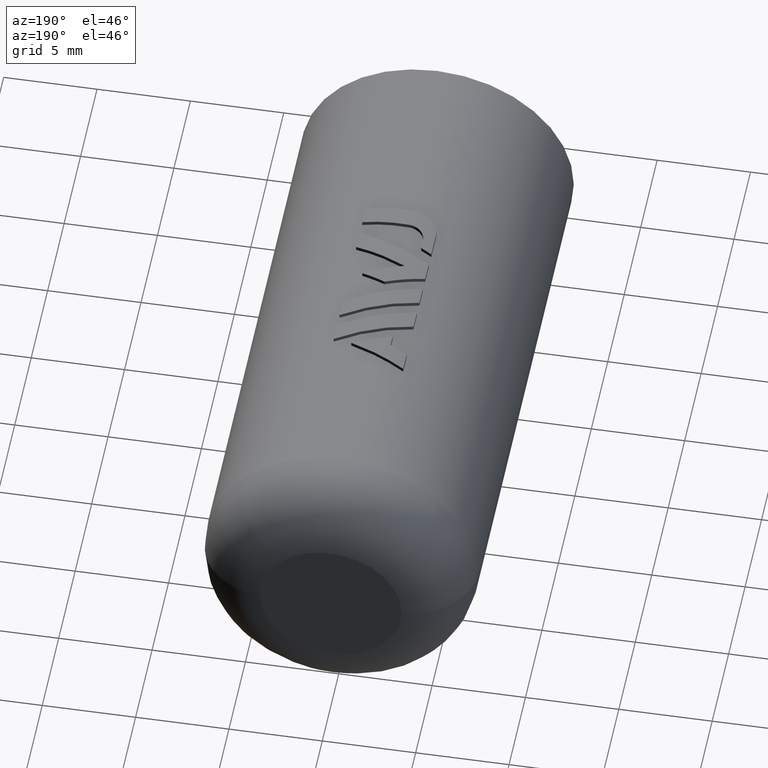
[diagram: clean part render]
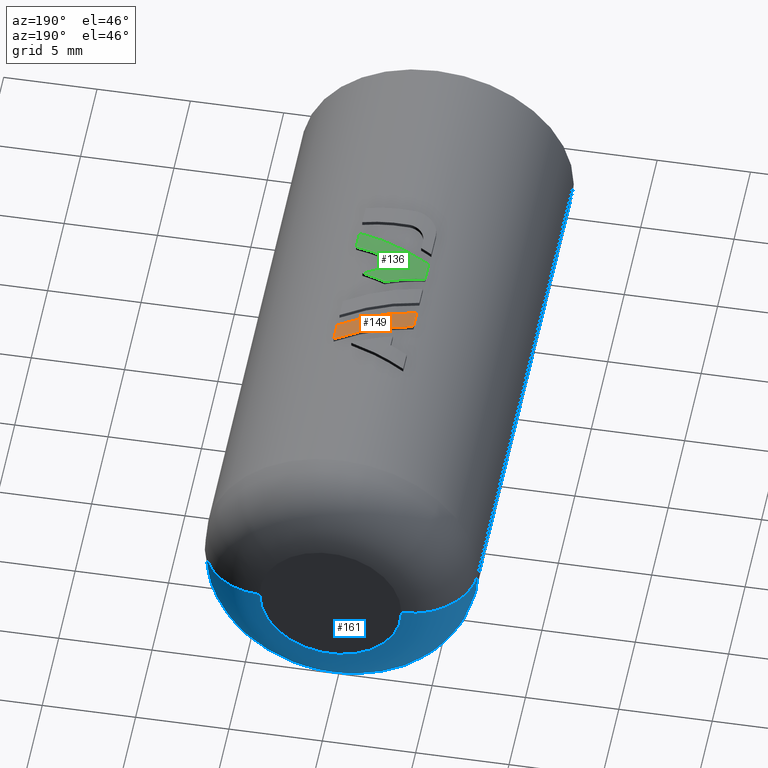
[diagram: same view with three faces highlighted in distinct colors, each labeled with its STEP entity id]
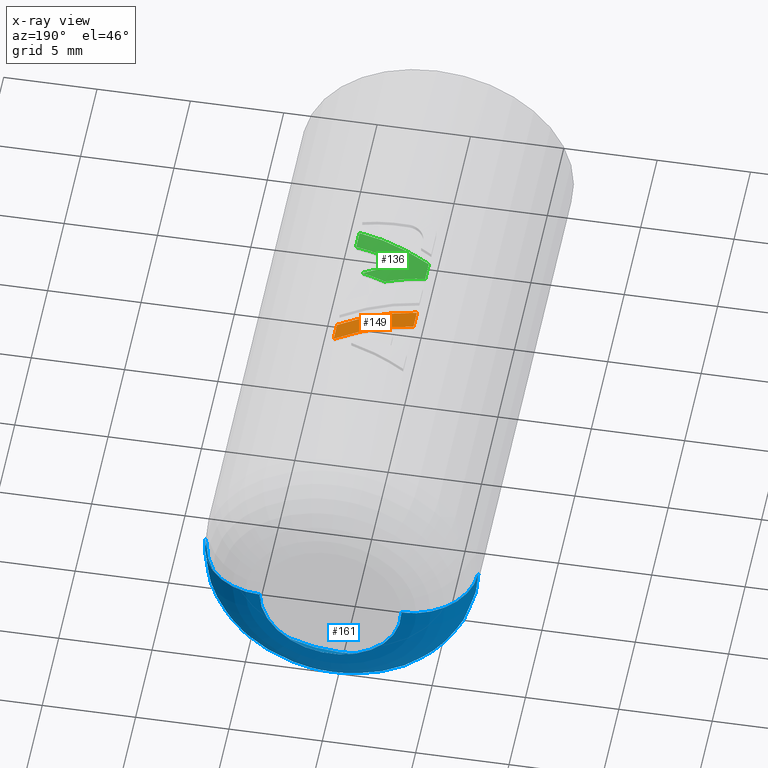
[diagram: x-ray of the same camera — body ghosted, the three highlighted faces saturated]
A machine part, auxiliary view with three faces highlighted in distinct colors.
The next image is the same camera in x-ray (body ghosted, the three faces saturated) — at least one of them is partly hidden behind the body in this view.
Their STEP definitions:

[orange] entity #149 — the highlighted cylindrical surface (partial cylindrical patch) has radius 7.5 mm, axis along (-0, 1, 0).
#149=ADVANCED_FACE('',(#304),#305,.T.);
#304=FACE_OUTER_BOUND('',#2111,.T.);
#305=CYLINDRICAL_SURFACE('',#2112,7.5);
#2111=EDGE_LOOP('',(#2695,#2696,#2697,#2698));
#2112=AXIS2_PLACEMENT_3D('',#2699,#2700,#2701);
#2695=ORIENTED_EDGE('',*,*,#3016,.F.);
#2696=ORIENTED_EDGE('',*,*,#3017,.F.);
#2697=ORIENTED_EDGE('',*,*,#3018,.F.);
#2698=ORIENTED_EDGE('',*,*,#3019,.F.);
#2699=CARTESIAN_POINT('',(0.0,33.6801944765275,0.0));
#2700=DIRECTION('',(-0.0,1.0,0.0));
#2701=DIRECTION('',(1.0,0.0,-6.12323399573677E-17));
#3016=EDGE_CURVE('',#3360,#3361,#3362,.T.);
#3017=EDGE_CURVE('',#3363,#3360,#3364,.F.);
#3018=EDGE_CURVE('',#3365,#3363,#3366,.T.);
#3019=EDGE_CURVE('',#3361,#3365,#3367,.T.);
#3360=VERTEX_POINT('',#4645);
#3361=VERTEX_POINT('',#4646);
#3362=ELLIPSE('',#4647,8.08897248153659,7.50000000000001);
#3363=VERTEX_POINT('',#4648);
#3364=LINE('',#4649,#4650);
#3365=VERTEX_POINT('',#4651);
#3366=ELLIPSE('',#4652,8.0891324357685,7.5);
#3367=LINE('',#4653,#4654);
#4645=CARTESIAN_POINT('',(-1.999014984,18.6186193688079,7.22868861507698));
#4646=CARTESIAN_POINT('',(1.99609020296564,20.2326924776245,7.22949679449577));
#4647=AXIS2_PLACEMENT_3D('',#5080,#5081,#5082);
#4648=CARTESIAN_POINT('',(-1.999014984,17.5863306964236,7.22868861507697));
#4649=CARTESIAN_POINT('',(-1.999014984,33.6801944765275,7.22868861507698));
#4650=VECTOR('',#5083,1000.0);
#4651=CARTESIAN_POINT('',(1.99609020296564,19.2006312487228,7.22949679449577));
#4652=AXIS2_PLACEMENT_3D('',#5084,#5085,#5086);
#4653=CARTESIAN_POINT('',(1.99609020296564,33.6801944765275,7.22949679449577));
#4654=VECTOR('',#5087,1000.0);
#5080=CARTESIAN_POINT('',(0.0,19.4262467475119,0.0));
#5081=DIRECTION('',(-0.374595787424494,0.927188220397468,3.08148791101958E-32));
#5082=DIRECTION('',(-0.927188220397468,-0.374595787424494,9.86076131526265E-32));
#5083=DIRECTION('',(0.0,-1.0,0.0));
#5084=CARTESIAN_POINT('',(0.0,18.3940718801236,0.0));
#5085=DIRECTION('',(0.374641164459302,-0.927169886208875,-4.00593428432545E-32));
#5086=DIRECTION('',(-0.927169886208875,-0.374641164459302,3.6977854932235E-32));
#5087=DIRECTION('',(0.0,-1.0,0.0));

[blue] entity #161 — the highlighted toroidal blend (fillet) surface has major radius 3.8 mm and minor (blend) radius 3.5 mm.
#161=ADVANCED_FACE('',(#328),#329,.T.);
#328=FACE_OUTER_BOUND('',#2135,.T.);
#329=TOROIDAL_SURFACE('',#2136,3.8,3.5);
#2135=EDGE_LOOP('',(#2778,#2779,#2780,#2781));
#2136=AXIS2_PLACEMENT_3D('',#2782,#2783,#2784);
#2778=ORIENTED_EDGE('',*,*,#2842,.T.);
#2779=ORIENTED_EDGE('',*,*,#2849,.F.);
#2780=ORIENTED_EDGE('',*,*,#2844,.T.);
#2781=ORIENTED_EDGE('',*,*,#3034,.T.);
#2782=CARTESIAN_POINT('',(0.0,29.0,0.0));
#2783=DIRECTION('',(0.0,-1.0,0.0));
#2784=DIRECTION('',(1.0,0.0,-6.12323399573677E-17));
#2842=EDGE_CURVE('',#3068,#3069,#3070,.T.);
#2844=EDGE_CURVE('',#3073,#3071,#3074,.T.);
#2849=EDGE_CURVE('',#3073,#3069,#3081,.T.);
#3034=EDGE_CURVE('',#3071,#3068,#3387,.T.);
#3068=VERTEX_POINT('',#4256);
#3069=VERTEX_POINT('',#4257);
#3070=CIRCLE('',#4258,3.5);
#3071=VERTEX_POINT('',#4259);
#3073=VERTEX_POINT('',#4261);
#3074=CIRCLE('',#4262,3.5);
#3081=CIRCLE('',#4271,7.3);
#3387=CIRCLE('',#4685,3.8);
#4256=CARTESIAN_POINT('',(3.8,32.5,-2.32682891837997E-16));
#4257=CARTESIAN_POINT('',(7.3,29.0,-4.46996081688784E-16));
#4258=AXIS2_PLACEMENT_3D('',#4708,#4709,#4710);
#4259=CARTESIAN_POINT('',(-3.8,32.5,6.98048675513991E-16));
#4261=CARTESIAN_POINT('',(-7.3,29.0,-4.46996081688783E-16));
#4262=AXIS2_PLACEMENT_3D('',#4714,#4715,#4716);
#4271=AXIS2_PLACEMENT_3D('',#4725,#4726,#4727);
#4685=AXIS2_PLACEMENT_3D('',#5108,#5109,#5110);
#4708=CARTESIAN_POINT('',(3.8,29.0,-6.98048675513991E-16));
#4709=DIRECTION('',(-1.83697019872103E-16,-0.0,-1.0));
#4710=DIRECTION('',(1.0,0.0,-1.83697019872103E-16));
#4714=CARTESIAN_POINT('',(-3.8,29.0,6.98048675513991E-16));
#4715=DIRECTION('',(-1.83697019872103E-16,0.0,-1.0));
#4716=DIRECTION('',(-1.0,0.0,1.83697019872103E-16));
#4725=CARTESIAN_POINT('',(0.0,29.0,0.0));
#4726=DIRECTION('',(0.0,-1.0,0.0));
#4727=DIRECTION('',(1.0,0.0,-6.12323399573677E-17));
#5108=CARTESIAN_POINT('',(0.0,32.5,0.0));
#5109=DIRECTION('',(0.0,-1.0,0.0));
#5110=DIRECTION('',(1.0,0.0,-6.12323399573677E-17));

[green] entity #136 — the highlighted cylindrical surface (partial cylindrical patch) has radius 7.5 mm, axis along (-0, 1, 0).
#136=ADVANCED_FACE('',(#278),#279,.T.);
#278=FACE_OUTER_BOUND('',#2085,.T.);
#279=CYLINDRICAL_SURFACE('',#2086,7.5);
#2085=EDGE_LOOP('',(#2601,#2602,#2603,#2604,#2605,#2606,#2607));
#2086=AXIS2_PLACEMENT_3D('',#2608,#2609,#2610);
#2601=ORIENTED_EDGE('',*,*,#2994,.F.);
#2602=ORIENTED_EDGE('',*,*,#2995,.F.);
#2603=ORIENTED_EDGE('',*,*,#2996,.F.);
#2604=ORIENTED_EDGE('',*,*,#2997,.F.);
#2605=ORIENTED_EDGE('',*,*,#2998,.F.);
#2606=ORIENTED_EDGE('',*,*,#2999,.F.);
#2607=ORIENTED_EDGE('',*,*,#3000,.F.);
#2608=CARTESIAN_POINT('',(0.0,29.1523402014589,0.0));
#2609=DIRECTION('',(-0.0,1.0,0.0));
#2610=DIRECTION('',(1.0,0.0,-6.12323399573677E-17));
#2994=EDGE_CURVE('',#3327,#3328,#3329,.T.);
#2995=EDGE_CURVE('',#3330,#3327,#3331,.F.);
#2996=EDGE_CURVE('',#3332,#3330,#3333,.T.);
#2997=EDGE_CURVE('',#3334,#3332,#3335,.T.);
#2998=EDGE_CURVE('',#3336,#3334,#3337,.T.);
#2999=EDGE_CURVE('',#3338,#3336,#3339,.T.);
#3000=EDGE_CURVE('',#3328,#3338,#3340,.T.);
#3327=VERTEX_POINT('',#4597);
#3328=VERTEX_POINT('',#4598);
#3329=ELLIPSE('',#4599,8.08920843523316,7.5);
#3330=VERTEX_POINT('',#4600);
#3331=LINE('',#4601,#4602);
#3332=VERTEX_POINT('',#4603);
#3333=ELLIPSE('',#4604,8.08895373816836,7.5);
#3334=VERTEX_POINT('',#4605);
#3335=LINE('',#4606,#4607);
#3336=VERTEX_POINT('',#4608);
#3337=ELLIPSE('',#4609,8.08914404760632,7.5);
#3338=VERTEX_POINT('',#4610);
#3339=ELLIPSE('',#4611,8.08906299846455,7.50000000000001);
#3340=ELLIPSE('',#4612,8.08881093796466,7.49999999999999);
#4597=CARTESIAN_POINT('',(-1.999014984,15.0682985695867,7.22868861507698));
#4598=CARTESIAN_POINT('',(0.0363794073554945,15.8907946174302,7.49991176872905));
#4599=AXIS2_PLACEMENT_3D('',#5044,#5045,#5046);
#4600=CARTESIAN_POINT('',(-1.99901498399999,13.9769820943037,7.22868861507698));
#4601=CARTESIAN_POINT('',(-1.999014984,29.1523402014589,7.22868861507698));
#4602=VECTOR('',#5047,1000.0);
#4603=CARTESIAN_POINT('',(1.99609020296564,12.3629356390202,7.22949679449577));
#4604=AXIS2_PLACEMENT_3D('',#5048,#5049,#5050);
#4605=CARTESIAN_POINT('',(1.99609020296564,13.3953113796127,7.22949679449577));
#4606=CARTESIAN_POINT('',(1.99609020296564,29.1523402014589,7.22949679449577));
#4607=VECTOR('',#5051,1000.0);
#4608=CARTESIAN_POINT('',(-0.794100262108502,14.5227540536865,7.45784183083278));
#4609=AXIS2_PLACEMENT_3D('',#5052,#5053,#5054);
#4610=CARTESIAN_POINT('',(1.31421286515668,15.3746071913595,7.38395859583846));
#4611=AXIS2_PLACEMENT_3D('',#5055,#5056,#5057);
#4612=AXIS2_PLACEMENT_3D('',#5058,#5059,#5060);
#5044=CARTESIAN_POINT('',(0.0,15.8760938209162,0.0));
#5045=DIRECTION('',(-0.374662721697119,0.927161175292898,1.84889274661174E-32));
#5046=DIRECTION('',(-0.927161175292898,-0.374662721697119,-2.46519032881566E-32));
#5047=DIRECTION('',(0.0,-1.0,0.0));
#5048=CARTESIAN_POINT('',(0.0,13.1693680521227,0.0));
#5049=DIRECTION('',(-0.374590469627021,-0.927190368837278,6.16297582203916E-33));
#5050=DIRECTION('',(0.927190368837278,-0.374590469627021,8.62816615085482E-32));
#5051=DIRECTION('',(0.0,-1.0,0.0));
#5052=CARTESIAN_POINT('',(0.0,14.2018789972339,0.0));
#5053=DIRECTION('',(0.37464445827513,0.927168555271227,1.54074395550979E-32));
#5054=DIRECTION('',(0.927168555271227,-0.37464445827513,8.45859292104056E-49));
#5055=CARTESIAN_POINT('',(0.0,14.8436062037566,0.0));
#5056=DIRECTION('',(0.374621466961798,-0.927177845125406,6.16297582203916E-33));
#5057=DIRECTION('',(-0.927177845125405,-0.374621466961798,4.93038065763132E-32));
#5058=CARTESIAN_POINT('',(0.0,15.9054902669532,0.0));
#5059=DIRECTION('',(0.374549951201191,0.927206737494495,3.38963670212154E-32));
#5060=DIRECTION('',(0.927206737494495,-0.374549951201191,2.46519032881566E-32));